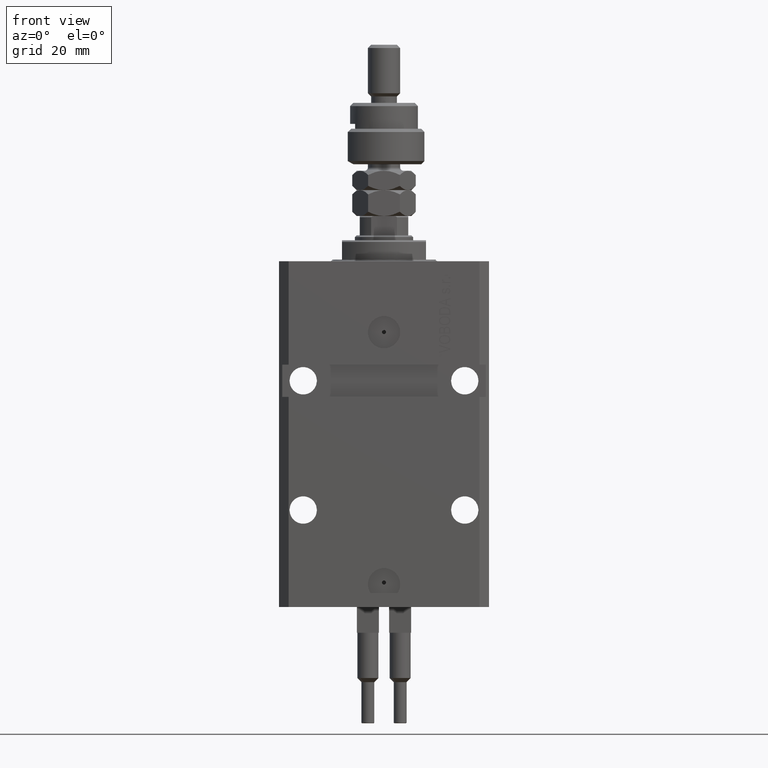
[diagram: clean part render]
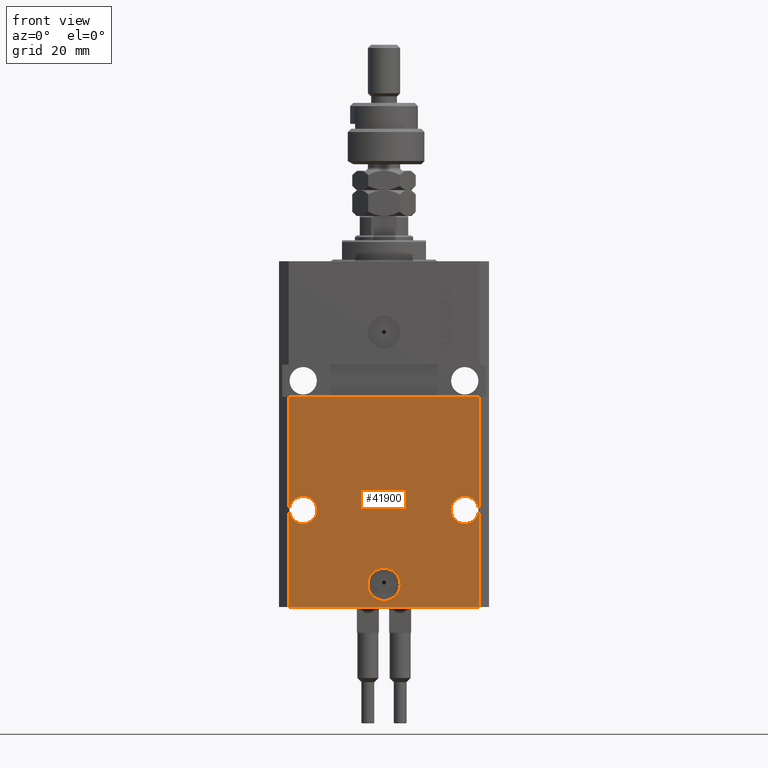
[diagram: same view with one face highlighted and labeled with its STEP entity id]
A machine part, front view. The second image highlights one B-rep face of the part: STEP entity #41900.
In plain terms, the highlighted planar face has unit normal (0, -1, 0).
Its self-contained STEP definition (entity closure, byte-faithful):
#75 = LINE ( 'NONE', #31973, #16344 ) ;
#881 = DIRECTION ( 'NONE',  ( -1.000000000000000000, 0.000000000000000000, 0.000000000000000000 ) ) ;
#1642 = DIRECTION ( 'NONE',  ( 1.176083712526788232E-16, -1.000000000000000000, 0.000000000000000000 ) ) ;
#2146 = DIRECTION ( 'NONE',  ( -1.000000000000000000, 0.000000000000000000, 0.000000000000000000 ) ) ;
#2938 = EDGE_CURVE ( 'NONE', #47069, #37708, #46047, .T. ) ;
#2966 = VERTEX_POINT ( 'NONE', #45539 ) ;
#3932 = LINE ( 'NONE', #39758, #10612 ) ;
#4011 = DIRECTION ( 'NONE',  ( 1.176083712526788232E-16, -1.000000000000000000, 0.000000000000000000 ) ) ;
#4147 = DIRECTION ( 'NONE',  ( 1.000000000000000000, 0.000000000000000000, 0.000000000000000000 ) ) ;
#4182 = CARTESIAN_POINT ( 'NONE',  ( 20.75000000001094946, -22.49999999999949196, -76.99999999999998579 ) ) ;
#4603 = VERTEX_POINT ( 'NONE', #38271 ) ;
#4718 = AXIS2_PLACEMENT_3D ( 'NONE', #21953, #6894, #18555 ) ;
#5195 = CARTESIAN_POINT ( 'NONE',  ( -29.49999999999650413, -22.49999999999949907, -107.0000000000000000 ) ) ;
#5449 = LINE ( 'NONE', #5195, #6458 ) ;
#5656 = EDGE_CURVE ( 'NONE', #4603, #8039, #27881, .T. ) ;
#5681 = FACE_BOUND ( 'NONE', #22780, .T. ) ;
#6164 = EDGE_LOOP ( 'NONE', ( #47671, #45115 ) ) ;
#6458 = VECTOR ( 'NONE', #24363, 1000.000000000000000 ) ;
#6682 = EDGE_CURVE ( 'NONE', #38008, #30169, #75, .T. ) ;
#6894 = DIRECTION ( 'NONE',  ( 1.176083712526788232E-16, -1.000000000000000000, 0.000000000000000000 ) ) ;
#7963 = EDGE_CURVE ( 'NONE', #30533, #38061, #5449, .T. ) ;
#8033 = CARTESIAN_POINT ( 'NONE',  ( 2.646188353185214061E-15, -22.49999999999949551, -99.99999999999998579 ) ) ;
#8039 = VERTEX_POINT ( 'NONE', #47201 ) ;
#8639 = CARTESIAN_POINT ( 'NONE',  ( -25.00000000000000000, -22.49999999999949907, -76.99999999999998579 ) ) ;
#10612 = VECTOR ( 'NONE', #11695, 1000.000000000000000 ) ;
#10716 = EDGE_CURVE ( 'NONE', #8039, #4603, #43034, .T. ) ;
#11362 = EDGE_CURVE ( 'NONE', #30533, #38008, #37337, .T. ) ;
#11566 = ORIENTED_EDGE ( 'NONE', *, *, #7963, .T. ) ;
#11695 = DIRECTION ( 'NONE',  ( 0.000000000000000000, 0.000000000000000000, 1.000000000000000000 ) ) ;
#12057 = ORIENTED_EDGE ( 'NONE', *, *, #6682, .F. ) ;
#13737 = EDGE_CURVE ( 'NONE', #20189, #2966, #48820, .T. ) ;
#13956 = CARTESIAN_POINT ( 'NONE',  ( -29.49999999999650413, -22.49999999999949907, -107.0000000000000000 ) ) ;
#16344 = VECTOR ( 'NONE', #47320, 1000.000000000000000 ) ;
#17146 = CARTESIAN_POINT ( 'NONE',  ( 29.24999999998906475, -22.49999999999949196, -76.99999999999998579 ) ) ;
#18555 = DIRECTION ( 'NONE',  ( 1.000000000000000000, 0.000000000000000000, 0.000000000000000000 ) ) ;
#18597 = DIRECTION ( 'NONE',  ( 1.000000000000000000, 1.176083712526788232E-16, 0.000000000000000000 ) ) ;
#18774 = AXIS2_PLACEMENT_3D ( 'NONE', #8639, #28357, #881 ) ;
#19763 = ORIENTED_EDGE ( 'NONE', *, *, #31406, .F. ) ;
#20189 = VERTEX_POINT ( 'NONE', #29724 ) ;
#20717 = ORIENTED_EDGE ( 'NONE', *, *, #2938, .F. ) ;
#21747 = FACE_BOUND ( 'NONE', #42452, .T. ) ;
#21953 = CARTESIAN_POINT ( 'NONE',  ( 25.00000000000000711, -22.49999999999949196, -76.99999999999998579 ) ) ;
#21996 = FACE_BOUND ( 'NONE', #6164, .T. ) ;
#22107 = ORIENTED_EDGE ( 'NONE', *, *, #34265, .T. ) ;
#22780 = EDGE_LOOP ( 'NONE', ( #20717, #19763 ) ) ;
#24363 = DIRECTION ( 'NONE',  ( 1.000000000000000000, 1.176083712526788232E-16, 0.000000000000000000 ) ) ;
#24563 = ORIENTED_EDGE ( 'NONE', *, *, #13737, .F. ) ;
#25968 = CARTESIAN_POINT ( 'NONE',  ( -25.00000000000000000, -22.49999999999949907, -76.99999999999998579 ) ) ;
#26520 = AXIS2_PLACEMENT_3D ( 'NONE', #13956, #38365, #18597 ) ;
#27049 = CIRCLE ( 'NONE', #4718, 4.249999999989057642 ) ;
#27237 = AXIS2_PLACEMENT_3D ( 'NONE', #27601, #4011, #47633 ) ;
#27601 = CARTESIAN_POINT ( 'NONE',  ( 2.646188353185214061E-15, -22.49999999999949551, -99.99999999999998579 ) ) ;
#27881 = CIRCLE ( 'NONE', #18774, 4.249999999976592058 ) ;
#28357 = DIRECTION ( 'NONE',  ( 1.176083712526788232E-16, -1.000000000000000000, 0.000000000000000000 ) ) ;
#28732 = DIRECTION ( 'NONE',  ( 0.000000000000000000, 0.000000000000000000, 1.000000000000000000 ) ) ;
#28894 = CARTESIAN_POINT ( 'NONE',  ( -29.49999999999650413, -22.49999999999949907, -107.0000000000000000 ) ) ;
#28968 = VECTOR ( 'NONE', #28732, 1000.000000000000000 ) ;
#29724 = CARTESIAN_POINT ( 'NONE',  ( -5.000000000000003553, -22.49999999999949551, -99.99999999999998579 ) ) ;
#29765 = CARTESIAN_POINT ( 'NONE',  ( -29.49999999999650413, -22.49999999999949907, -107.0000000000000000 ) ) ;
#30169 = VERTEX_POINT ( 'NONE', #43027 ) ;
#30425 = CARTESIAN_POINT ( 'NONE',  ( 25.00000000000000711, -22.49999999999949196, -76.99999999999998579 ) ) ;
#30533 = VERTEX_POINT ( 'NONE', #28894 ) ;
#31359 = CARTESIAN_POINT ( 'NONE',  ( 29.49999999999650413, -22.49999999999949196, -107.0000000000000000 ) ) ;
#31406 = EDGE_CURVE ( 'NONE', #37708, #47069, #27049, .T. ) ;
#31973 = CARTESIAN_POINT ( 'NONE',  ( -32.49999999999650413, -22.49999999999949907, -41.99999999999999289 ) ) ;
#33443 = PLANE ( 'NONE',  #26520 ) ;
#34265 = EDGE_CURVE ( 'NONE', #38061, #30169, #3932, .T. ) ;
#35547 = ORIENTED_EDGE ( 'NONE', *, *, #11362, .F. ) ;
#35676 = CIRCLE ( 'NONE', #46481, 5.000000000000006217 ) ;
#37337 = LINE ( 'NONE', #29765, #28968 ) ;
#37708 = VERTEX_POINT ( 'NONE', #4182 ) ;
#37975 = DIRECTION ( 'NONE',  ( 1.176083712526788232E-16, -1.000000000000000000, 0.000000000000000000 ) ) ;
#38008 = VERTEX_POINT ( 'NONE', #38920 ) ;
#38061 = VERTEX_POINT ( 'NONE', #31359 ) ;
#38271 = CARTESIAN_POINT ( 'NONE',  ( -20.75000000002340883, -22.49999999999949907, -76.99999999999998579 ) ) ;
#38365 = DIRECTION ( 'NONE',  ( 1.176083712526788232E-16, -1.000000000000000000, 0.000000000000000000 ) ) ;
#38920 = CARTESIAN_POINT ( 'NONE',  ( -29.49999999999650413, -22.49999999999949907, -41.99999999999999289 ) ) ;
#39143 = EDGE_CURVE ( 'NONE', #2966, #20189, #35676, .T. ) ;
#39206 = DIRECTION ( 'NONE',  ( 1.176083712526788232E-16, -1.000000000000000000, 0.000000000000000000 ) ) ;
#39758 = CARTESIAN_POINT ( 'NONE',  ( 29.49999999999650413, -22.49999999999949196, -107.0000000000000000 ) ) ;
#41381 = AXIS2_PLACEMENT_3D ( 'NONE', #25968, #1642, #2146 ) ;
#41887 = AXIS2_PLACEMENT_3D ( 'NONE', #30425, #37975, #46290 ) ;
#41900 = ADVANCED_FACE ( 'NONE', ( #21747, #5681, #21996, #50047 ), #33443, .T. ) ;
#42452 = EDGE_LOOP ( 'NONE', ( #46375, #24563 ) ) ;
#43027 = CARTESIAN_POINT ( 'NONE',  ( 29.49999999999650058, -22.49999999999949196, -41.99999999999998579 ) ) ;
#43034 = CIRCLE ( 'NONE', #41381, 4.249999999976592058 ) ;
#45115 = ORIENTED_EDGE ( 'NONE', *, *, #10716, .F. ) ;
#45539 = CARTESIAN_POINT ( 'NONE',  ( 5.000000000000008882, -22.49999999999949551, -99.99999999999998579 ) ) ;
#46047 = CIRCLE ( 'NONE', #41887, 4.249999999989057642 ) ;
#46290 = DIRECTION ( 'NONE',  ( 1.000000000000000000, 0.000000000000000000, 0.000000000000000000 ) ) ;
#46375 = ORIENTED_EDGE ( 'NONE', *, *, #39143, .F. ) ;
#46481 = AXIS2_PLACEMENT_3D ( 'NONE', #8033, #39206, #4147 ) ;
#47069 = VERTEX_POINT ( 'NONE', #17146 ) ;
#47201 = CARTESIAN_POINT ( 'NONE',  ( -29.24999999997659472, -22.49999999999949907, -76.99999999999998579 ) ) ;
#47320 = DIRECTION ( 'NONE',  ( 1.000000000000000000, 1.067522139062765303E-16, 1.067522139062765303E-16 ) ) ;
#47368 = EDGE_LOOP ( 'NONE', ( #12057, #35547, #11566, #22107 ) ) ;
#47633 = DIRECTION ( 'NONE',  ( 1.000000000000000000, 0.000000000000000000, 0.000000000000000000 ) ) ;
#47671 = ORIENTED_EDGE ( 'NONE', *, *, #5656, .F. ) ;
#48820 = CIRCLE ( 'NONE', #27237, 5.000000000000006217 ) ;
#50047 = FACE_OUTER_BOUND ( 'NONE', #47368, .T. ) ;